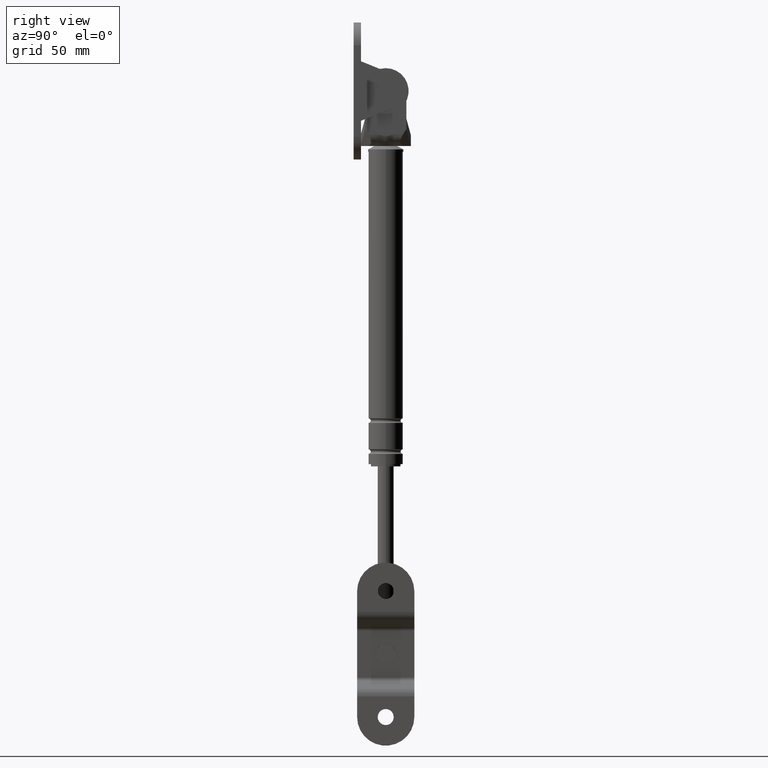
[diagram: clean part render]
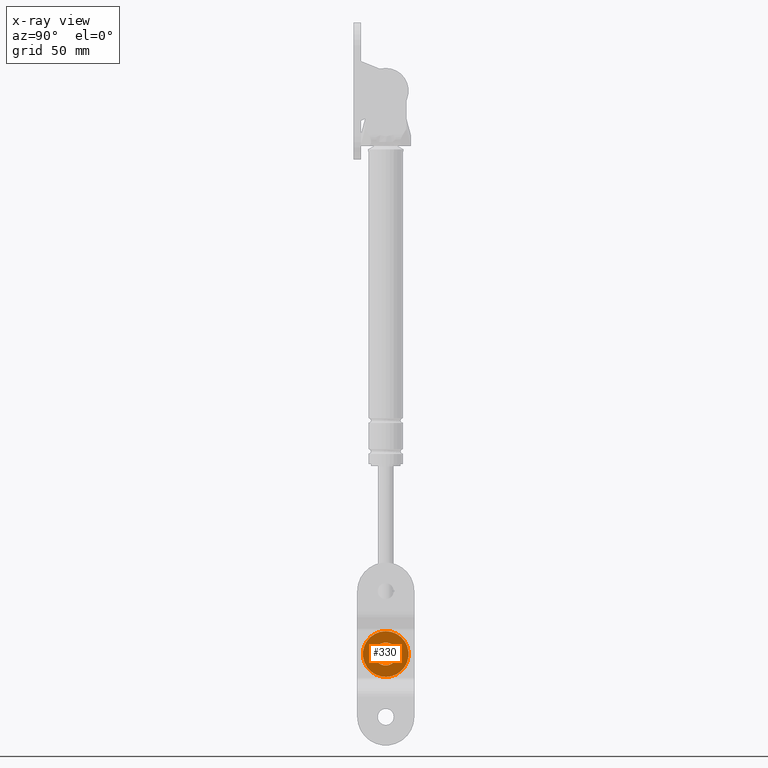
[diagram: x-ray — body ghosted, one internal face saturated and labeled with its STEP entity id]
A machine part, right view, then the same camera in x-ray: the body is ghosted and one INTERNAL B-rep face — a face not visible from any outside direction — is saturated and labeled: STEP entity #330.
In plain terms, the highlighted planar face has unit normal (1, 0, 0).
Its self-contained STEP definition (entity closure, byte-faithful):
#330=ADVANCED_FACE('',(#531,#532),#530,.T.);
#530=PLANE('',#1966);
#531=FACE_OUTER_BOUND('',#1967,.T.);
#532=FACE_BOUND('',#1968,.T.);
#1963=CARTESIAN_POINT('',(-6.70000310000E+001,2.07846096908E+001,2.76000000000E+002));
#1964=DIRECTION('',(1.00000000000E+000,0.00000000000E+000,0.00000000000E+000));
#1965=DIRECTION('',(0.00000000000E+000,-1.00000000000E+000,0.00000000000E+000));
#1966=AXIS2_PLACEMENT_3D('',#1963,#1964,#1965);
#1967=EDGE_LOOP('',(#3008,#3009));
#1968=EDGE_LOOP('',(#3010,#3011));
#3008=ORIENTED_EDGE('',*,*,#3706,.F.);
#3009=ORIENTED_EDGE('',*,*,#3707,.F.);
#3010=ORIENTED_EDGE('',*,*,#3708,.T.);
#3011=ORIENTED_EDGE('',*,*,#3709,.T.);
#3706=EDGE_CURVE('',#4129,#4130,#4131,.T.);
#3707=EDGE_CURVE('',#4130,#4129,#4137,.T.);
#3708=EDGE_CURVE('',#4143,#4144,#4145,.T.);
#3709=EDGE_CURVE('',#4144,#4143,#4151,.T.);
#4129=VERTEX_POINT('',#6455);
#4130=VERTEX_POINT('',#6456);
#4131=CIRCLE('',#6460,1.00000000000E+001);
#4137=CIRCLE('',#6464,1.00000000000E+001);
#4143=VERTEX_POINT('',#6465);
#4144=VERTEX_POINT('',#6466);
#4145=CIRCLE('',#6470,5.00000000000E+000);
#4151=CIRCLE('',#6474,5.00000000000E+000);
#6455=CARTESIAN_POINT('',(-6.70000310000E+001,5.80276567537E-014,2.63000000000E+002));
#6456=CARTESIAN_POINT('',(-6.70000310000E+001,5.68434188608E-014,2.43000000000E+002));
#6457=CARTESIAN_POINT('',(-6.70000310000E+001,5.68434188608E-014,2.53000000000E+002));
#6458=DIRECTION('',(-1.00000000000E+000,0.00000000000E+000,-0.00000000000E+000));
#6459=DIRECTION('',(0.00000000000E+000,-1.22460635382E-016,-1.00000000000E+000));
#6460=AXIS2_PLACEMENT_3D('',#6457,#6458,#6459);
#6461=CARTESIAN_POINT('',(-6.70000310000E+001,5.68434188608E-014,2.53000000000E+002));
#6462=DIRECTION('',(-1.00000000000E+000,0.00000000000E+000,-0.00000000000E+000));
#6463=DIRECTION('',(0.00000000000E+000,-1.22460635382E-016,-1.00000000000E+000));
#6464=AXIS2_PLACEMENT_3D('',#6461,#6462,#6463);
#6465=CARTESIAN_POINT('',(-6.70000310000E+001,5.68434188608E-014,2.48000000000E+002));
#6466=CARTESIAN_POINT('',(-6.70000310000E+001,5.74355378073E-014,2.58000000000E+002));
#6467=CARTESIAN_POINT('',(-6.70000310000E+001,5.68434188608E-014,2.53000000000E+002));
#6468=DIRECTION('',(-1.00000000000E+000,0.00000000000E+000,-0.00000000000E+000));
#6469=DIRECTION('',(0.00000000000E+000,-1.22460635382E-016,-1.00000000000E+000));
#6470=AXIS2_PLACEMENT_3D('',#6467,#6468,#6469);
#6471=CARTESIAN_POINT('',(-6.70000310000E+001,5.68434188608E-014,2.53000000000E+002));
#6472=DIRECTION('',(-1.00000000000E+000,0.00000000000E+000,-0.00000000000E+000));
#6473=DIRECTION('',(0.00000000000E+000,-1.22460635382E-016,-1.00000000000E+000));
#6474=AXIS2_PLACEMENT_3D('',#6471,#6472,#6473);